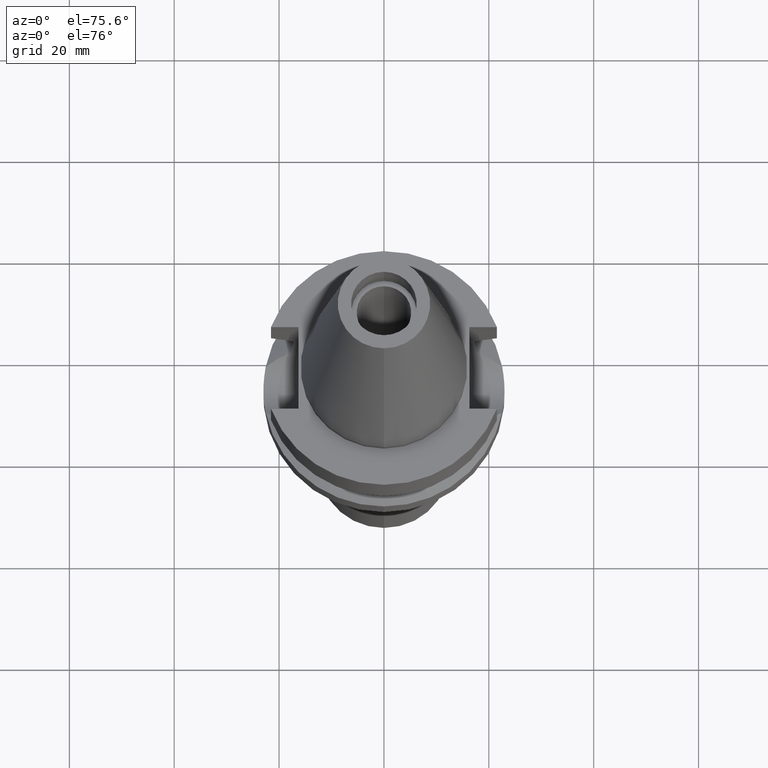
[diagram: clean part render]
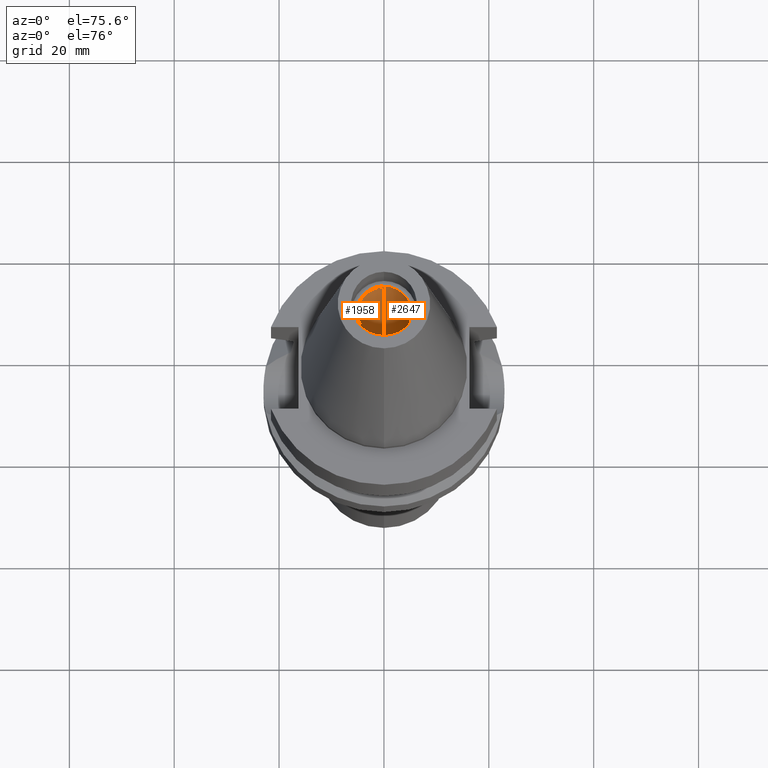
[diagram: same view with one multi-face feature highlighted, each face labeled with its STEP entity id]
A machine part, auxiliary view. The highlighted faces form ONE feature: a constant-radius fillet chain: 2 tangent blend faces with common blend radius 5.2 mm. The faces share edges in the B-rep.
Their STEP definitions:
[1] entity #1958 (Cylinder):
#79 = ORIENTED_EDGE ( 'NONE', *, *, #1771, .F. ) ;
#141 = ORIENTED_EDGE ( 'NONE', *, *, #2435, .T. ) ;
#251 = LINE ( 'NONE', #1458, #1520 ) ;
#281 = DIRECTION ( 'NONE',  ( 0.0000000000000000000, 0.0000000000000000000, 1.000000000000000000 ) ) ;
#328 = DIRECTION ( 'NONE',  ( 0.0000000000000000000, 0.0000000000000000000, -1.000000000000000000 ) ) ;
#375 = VERTEX_POINT ( 'NONE', #1993 ) ;
#558 = VERTEX_POINT ( 'NONE', #2299 ) ;
#583 = FACE_OUTER_BOUND ( 'NONE', #2901, .T. ) ;
#663 = CIRCLE ( 'NONE', #1847, 5.200000000000000178 ) ;
#748 = AXIS2_PLACEMENT_3D ( 'NONE', #2896, #2484, #1810 ) ;
#848 = CYLINDRICAL_SURFACE ( 'NONE', #748, 5.200000000000000178 ) ;
#863 = CARTESIAN_POINT ( 'NONE',  ( 0.0000000000000000000, 0.0000000000000000000, 41.39999999999999858 ) ) ;
#899 = CARTESIAN_POINT ( 'NONE',  ( 0.0000000000000000000, -5.200000000000000178, 0.0000000000000000000 ) ) ;
#1022 = CARTESIAN_POINT ( 'NONE',  ( 0.0000000000000000000, 0.0000000000000000000, 0.0000000000000000000 ) ) ;
#1100 = LINE ( 'NONE', #2018, #2714 ) ;
#1458 = CARTESIAN_POINT ( 'NONE',  ( 0.0000000000000000000, 5.200000000000000178, 0.0000000000000000000 ) ) ;
#1520 = VECTOR ( 'NONE', #281, 1000.000000000000000 ) ;
#1633 = EDGE_CURVE ( 'NONE', #1854, #2528, #1815, .T. ) ;
#1720 = DIRECTION ( 'NONE',  ( 0.0000000000000000000, 0.0000000000000000000, 1.000000000000000000 ) ) ;
#1771 = EDGE_CURVE ( 'NONE', #1854, #375, #1100, .T. ) ;
#1810 = DIRECTION ( 'NONE',  ( 0.0000000000000000000, -1.000000000000000000, 0.0000000000000000000 ) ) ;
#1815 = CIRCLE ( 'NONE', #2569, 5.200000000000000178 ) ;
#1847 = AXIS2_PLACEMENT_3D ( 'NONE', #863, #1720, #1978 ) ;
#1854 = VERTEX_POINT ( 'NONE', #899 ) ;
#1958 = ADVANCED_FACE ( 'NONE', ( #583 ), #848, .F. ) ;
#1978 = DIRECTION ( 'NONE',  ( 0.0000000000000000000, 1.000000000000000000, 0.0000000000000000000 ) ) ;
#1993 = CARTESIAN_POINT ( 'NONE',  ( 0.0000000000000000000, -5.200000000000000178, 41.39999999999999858 ) ) ;
#2018 = CARTESIAN_POINT ( 'NONE',  ( 0.0000000000000000000, -5.200000000000000178, 0.0000000000000000000 ) ) ;
#2044 = DIRECTION ( 'NONE',  ( 0.0000000000000000000, 0.0000000000000000000, 1.000000000000000000 ) ) ;
#2299 = CARTESIAN_POINT ( 'NONE',  ( 0.0000000000000000000, 5.200000000000000178, 41.39999999999999858 ) ) ;
#2364 = ORIENTED_EDGE ( 'NONE', *, *, #3043, .T. ) ;
#2435 = EDGE_CURVE ( 'NONE', #558, #375, #663, .T. ) ;
#2484 = DIRECTION ( 'NONE',  ( 0.0000000000000000000, 0.0000000000000000000, -1.000000000000000000 ) ) ;
#2528 = VERTEX_POINT ( 'NONE', #3030 ) ;
#2569 = AXIS2_PLACEMENT_3D ( 'NONE', #1022, #328, #2655 ) ;
#2655 = DIRECTION ( 'NONE',  ( 0.0000000000000000000, -1.000000000000000000, 0.0000000000000000000 ) ) ;
#2714 = VECTOR ( 'NONE', #2044, 1000.000000000000000 ) ;
#2896 = CARTESIAN_POINT ( 'NONE',  ( 0.0000000000000000000, 0.0000000000000000000, 0.0000000000000000000 ) ) ;
#2901 = EDGE_LOOP ( 'NONE', ( #141, #79, #2993, #2364 ) ) ;
#2993 = ORIENTED_EDGE ( 'NONE', *, *, #1633, .T. ) ;
#3030 = CARTESIAN_POINT ( 'NONE',  ( 0.0000000000000000000, 5.200000000000000178, 0.0000000000000000000 ) ) ;
#3043 = EDGE_CURVE ( 'NONE', #2528, #558, #251, .T. ) ;
[2] entity #2647 (Cylinder):
#181 = EDGE_LOOP ( 'NONE', ( #1870, #2474, #979, #1772 ) ) ;
#251 = LINE ( 'NONE', #1458, #1520 ) ;
#281 = DIRECTION ( 'NONE',  ( 0.0000000000000000000, 0.0000000000000000000, 1.000000000000000000 ) ) ;
#375 = VERTEX_POINT ( 'NONE', #1993 ) ;
#380 = CARTESIAN_POINT ( 'NONE',  ( 0.0000000000000000000, 0.0000000000000000000, 0.0000000000000000000 ) ) ;
#558 = VERTEX_POINT ( 'NONE', #2299 ) ;
#585 = DIRECTION ( 'NONE',  ( 0.0000000000000000000, 0.0000000000000000000, 1.000000000000000000 ) ) ;
#813 = AXIS2_PLACEMENT_3D ( 'NONE', #380, #1145, #2797 ) ;
#899 = CARTESIAN_POINT ( 'NONE',  ( 0.0000000000000000000, -5.200000000000000178, 0.0000000000000000000 ) ) ;
#979 = ORIENTED_EDGE ( 'NONE', *, *, #2761, .T. ) ;
#1068 = CARTESIAN_POINT ( 'NONE',  ( 0.0000000000000000000, 0.0000000000000000000, 0.0000000000000000000 ) ) ;
#1100 = LINE ( 'NONE', #2018, #2714 ) ;
#1145 = DIRECTION ( 'NONE',  ( 0.0000000000000000000, 0.0000000000000000000, -1.000000000000000000 ) ) ;
#1240 = CARTESIAN_POINT ( 'NONE',  ( 0.0000000000000000000, 0.0000000000000000000, 41.39999999999999858 ) ) ;
#1242 = FACE_OUTER_BOUND ( 'NONE', #181, .T. ) ;
#1316 = CYLINDRICAL_SURFACE ( 'NONE', #813, 5.200000000000000178 ) ;
#1458 = CARTESIAN_POINT ( 'NONE',  ( 0.0000000000000000000, 5.200000000000000178, 0.0000000000000000000 ) ) ;
#1520 = VECTOR ( 'NONE', #281, 1000.000000000000000 ) ;
#1616 = CIRCLE ( 'NONE', #2062, 5.200000000000000178 ) ;
#1771 = EDGE_CURVE ( 'NONE', #1854, #375, #1100, .T. ) ;
#1772 = ORIENTED_EDGE ( 'NONE', *, *, #3043, .F. ) ;
#1841 = AXIS2_PLACEMENT_3D ( 'NONE', #1068, #2306, #3036 ) ;
#1854 = VERTEX_POINT ( 'NONE', #899 ) ;
#1870 = ORIENTED_EDGE ( 'NONE', *, *, #2466, .T. ) ;
#1993 = CARTESIAN_POINT ( 'NONE',  ( 0.0000000000000000000, -5.200000000000000178, 41.39999999999999858 ) ) ;
#2018 = CARTESIAN_POINT ( 'NONE',  ( 0.0000000000000000000, -5.200000000000000178, 0.0000000000000000000 ) ) ;
#2044 = DIRECTION ( 'NONE',  ( 0.0000000000000000000, 0.0000000000000000000, 1.000000000000000000 ) ) ;
#2062 = AXIS2_PLACEMENT_3D ( 'NONE', #1240, #585, #2220 ) ;
#2220 = DIRECTION ( 'NONE',  ( 0.0000000000000000000, -1.000000000000000000, 0.0000000000000000000 ) ) ;
#2299 = CARTESIAN_POINT ( 'NONE',  ( 0.0000000000000000000, 5.200000000000000178, 41.39999999999999858 ) ) ;
#2306 = DIRECTION ( 'NONE',  ( 0.0000000000000000000, 0.0000000000000000000, -1.000000000000000000 ) ) ;
#2308 = CIRCLE ( 'NONE', #1841, 5.200000000000000178 ) ;
#2466 = EDGE_CURVE ( 'NONE', #2528, #1854, #2308, .T. ) ;
#2474 = ORIENTED_EDGE ( 'NONE', *, *, #1771, .T. ) ;
#2528 = VERTEX_POINT ( 'NONE', #3030 ) ;
#2647 = ADVANCED_FACE ( 'NONE', ( #1242 ), #1316, .F. ) ;
#2714 = VECTOR ( 'NONE', #2044, 1000.000000000000000 ) ;
#2761 = EDGE_CURVE ( 'NONE', #375, #558, #1616, .T. ) ;
#2797 = DIRECTION ( 'NONE',  ( 0.0000000000000000000, -1.000000000000000000, 0.0000000000000000000 ) ) ;
#3030 = CARTESIAN_POINT ( 'NONE',  ( 0.0000000000000000000, 5.200000000000000178, 0.0000000000000000000 ) ) ;
#3036 = DIRECTION ( 'NONE',  ( 0.0000000000000000000, 1.000000000000000000, 0.0000000000000000000 ) ) ;
#3043 = EDGE_CURVE ( 'NONE', #2528, #558, #251, .T. ) ;